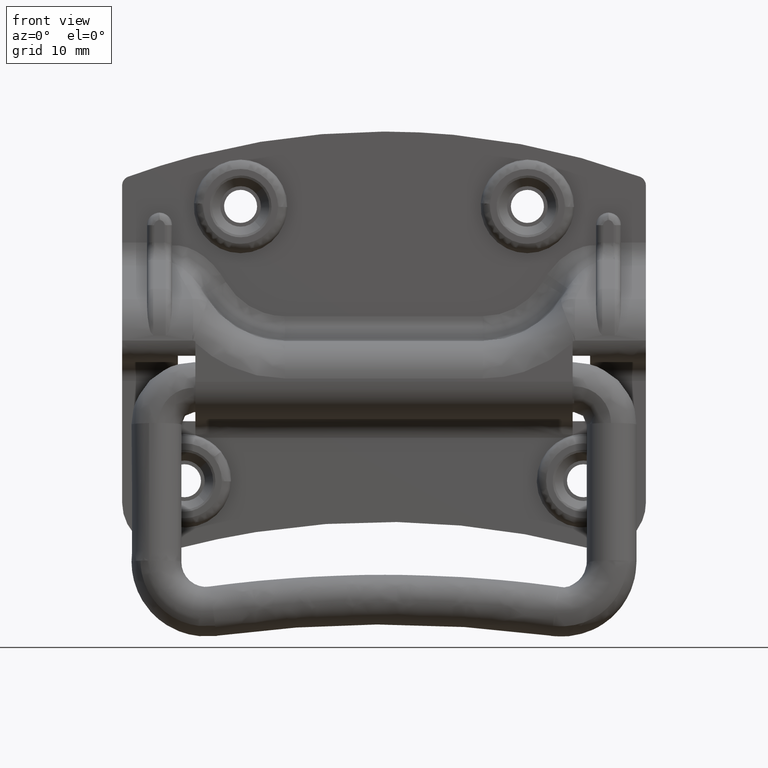
[diagram: clean part render]
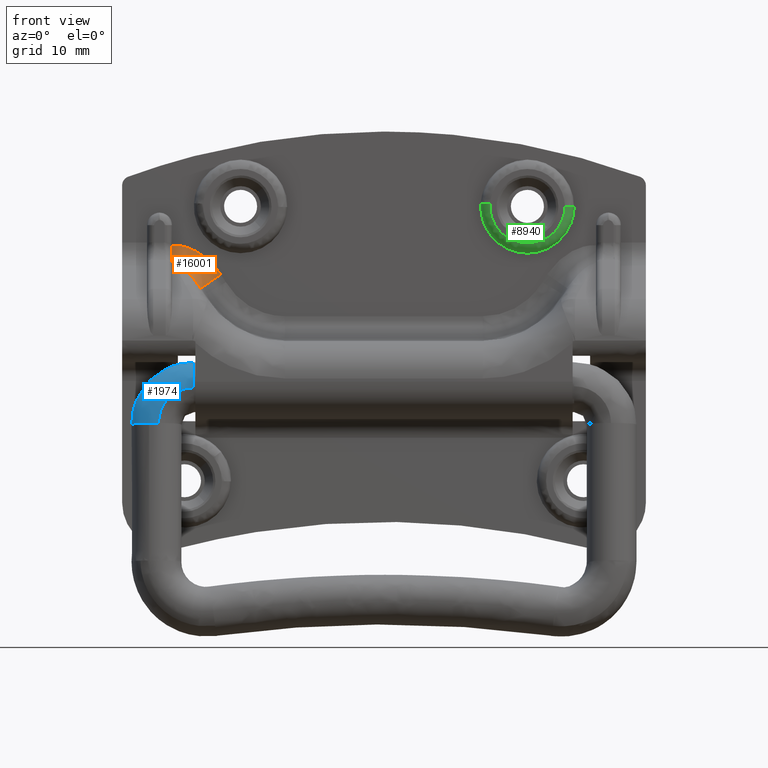
[diagram: same view with three faces highlighted in distinct colors, each labeled with its STEP entity id]
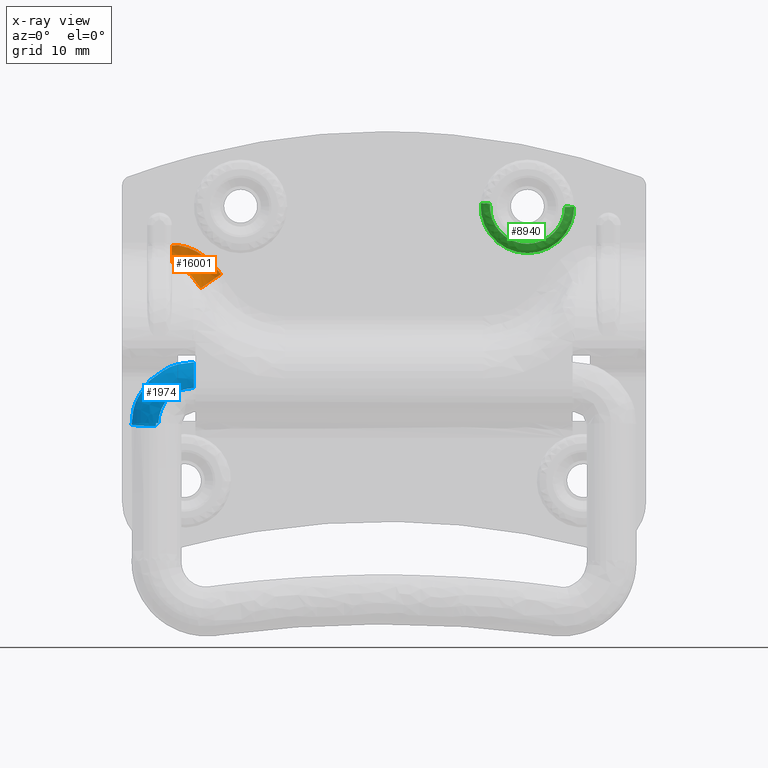
[diagram: x-ray of the same camera — body ghosted, the three highlighted faces saturated]
A machine part, front view with three faces highlighted in distinct colors.
The next image is the same camera in x-ray (body ghosted, the three faces saturated) — at least one of them is partly hidden behind the body in this view.
Their STEP definitions:

[orange] entity #16001 — the highlighted face is a freeform B-spline surface patch.
#15775=CARTESIAN_POINT('',(-26.149468137103501,4.935900000000090,18.113090514669800));
#15776=VERTEX_POINT('',#15775);
#15777=CARTESIAN_POINT('',(-29.409568860346251,1.460647611297752,15.855573467392000));
#15778=VERTEX_POINT('',#15777);
#15779=CARTESIAN_POINT('',(-26.149468137103501,4.935900000000090,18.113090514669800));
#15780=CARTESIAN_POINT('',(-26.568588633032931,4.936374894532090,17.822862774870689));
#15781=CARTESIAN_POINT('',(-27.258520476486911,4.773188127649849,17.345106708331791));
#15782=CARTESIAN_POINT('',(-28.040623944322942,4.245822206106547,16.803524695608321));
#15783=CARTESIAN_POINT('',(-28.599071117405529,3.650581379409214,16.416817621115332));
#15784=CARTESIAN_POINT('',(-29.131403673609110,2.776596310723893,16.048194096116969));
#15785=CARTESIAN_POINT('',(-29.355016877997240,1.966127437139701,15.893348996607340));
#15786=CARTESIAN_POINT('',(-29.409568860346251,1.460647611297752,15.855573467392000));
#15787=B_SPLINE_CURVE_WITH_KNOTS('',3,(#15779,#15780,#15781,#15782,#15783,#15784,#15785,#15786),.UNSPECIFIED.,.F.,.U.,(4,1,1,1,1,4),(0.000000226432683,1.529216599373791,2.518748498774976,3.238293776758118,4.227825676159383,5.757042049100749),.UNSPECIFIED.);
#15788=EDGE_CURVE('',#15776,#15778,#15787,.T.);
#15882=CARTESIAN_POINT('',(-34.410235586986460,4.935900000000102,22.733801792198545));
#15883=CARTESIAN_POINT('',(-33.726387109187556,4.935900000000077,22.832690968939257));
#15884=CARTESIAN_POINT('',(-33.001274293784540,4.935900000000100,22.801524732169892));
#15885=CARTESIAN_POINT('',(-31.527565269436298,4.935900000000101,22.481613556045001));
#15886=CARTESIAN_POINT('',(-30.779142388134730,4.935900000000107,22.192906839986659));
#15887=CARTESIAN_POINT('',(-29.319957373866892,4.935900000000093,21.381478462263914));
#15888=CARTESIAN_POINT('',(-28.609391789222855,4.935900000000104,20.858855246593208));
#15889=CARTESIAN_POINT('',(-27.284027282095938,4.935900000000101,19.622271182409914));
#15890=CARTESIAN_POINT('',(-26.669460900456720,4.935900000000104,18.908533275764974));
#15891=CARTESIAN_POINT('',(-26.116986752242507,4.935900000000100,18.112615664591296));
#15892=CARTESIAN_POINT('',(-26.106219856319939,4.935900000000099,18.097104419205174));
#15893=CARTESIAN_POINT('',(-26.095453056127965,4.935900000000102,18.081593311732568));
#15894=CARTESIAN_POINT('',(-34.409116190521672,4.935900000000100,22.726028388677140));
#15895=CARTESIAN_POINT('',(-33.726238528647450,4.935900000000089,22.824571686799118));
#15896=CARTESIAN_POINT('',(-33.002120172506437,4.935900000000101,22.793138854908772));
#15897=CARTESIAN_POINT('',(-31.530435779651707,4.935900000000104,22.472869214631039));
#15898=CARTESIAN_POINT('',(-30.783028965297582,4.935900000000107,22.184071094613131));
#15899=CARTESIAN_POINT('',(-29.325882313281642,4.935900000000098,21.372657251805233));
#15900=CARTESIAN_POINT('',(-28.616322838177432,4.935900000000102,20.850136520216704));
#15901=CARTESIAN_POINT('',(-27.292944487315840,4.935900000000103,19.613983650753454));
#15902=CARTESIAN_POINT('',(-26.679339668938560,4.935900000000100,18.900566222793017));
#15903=CARTESIAN_POINT('',(-26.127848402183226,4.935900000000100,18.105114087138883));
#15904=CARTESIAN_POINT('',(-26.117099412956708,4.935900000000102,18.089610112820917));
#15905=CARTESIAN_POINT('',(-26.106350471575588,4.935900000000101,18.074106207513520));
#15906=CARTESIAN_POINT('',(-34.165460109700923,4.935900000000101,21.034012113596926));
#15907=CARTESIAN_POINT('',(-33.693742064841921,4.935900000002790,21.048780873247040));
#15908=CARTESIAN_POINT('',(-33.188560870579245,4.935900000000101,20.944802007035715));
#15909=CARTESIAN_POINT('',(-32.176768034052657,4.935900000000101,20.503968400746068));
#15910=CARTESIAN_POINT('',(-31.670235688498707,4.935899999999380,20.167095135698244));
#15911=CARTESIAN_POINT('',(-30.724491068231121,4.935900000000826,19.290370613383690));
#15912=CARTESIAN_POINT('',(-30.285458452155375,4.935900000000101,18.750492325104176));
#15913=CARTESIAN_POINT('',(-29.542170860357654,4.935900000000101,17.523582643991670));
#15914=CARTESIAN_POINT('',(-29.238267333009791,4.935900000000102,16.836836083915628));
#15915=CARTESIAN_POINT('',(-29.027250436086202,4.935900000000101,16.102647699276751));
#15916=CARTESIAN_POINT('',(-29.023009989153557,4.935900000000101,16.087893966618285));
#15917=CARTESIAN_POINT('',(-29.018764529241658,4.935900000000101,16.073122792365421));
#15918=CARTESIAN_POINT('',(-33.996478444106515,3.704348476384656,19.860555955996645));
#15919=CARTESIAN_POINT('',(-33.675090459381785,3.639892164192167,19.844391847521287));
#15920=CARTESIAN_POINT('',(-33.317952318423458,3.536863904020250,19.737941675267827));
#15921=CARTESIAN_POINT('',(-32.561723906083650,3.262203975300446,19.353180193142890));
#15922=CARTESIAN_POINT('',(-32.162616753175726,3.090596932523266,19.074900438522768));
#15923=CARTESIAN_POINT('',(-31.354807783972664,2.692850551939682,18.369177516619494));
#15924=CARTESIAN_POINT('',(-30.946204691465599,2.466773247731942,17.941802838247305));
#15925=CARTESIAN_POINT('',(-30.152784814072685,1.978676906396786,16.972761025503956));
#15926=CARTESIAN_POINT('',(-29.768117599151026,1.716759171822953,16.431254880560147));
#15927=CARTESIAN_POINT('',(-29.403895201770215,1.442194637368716,15.843123269177168));
#15928=CARTESIAN_POINT('',(-29.396796226501568,1.436843162957062,15.831660130737754));
#15929=CARTESIAN_POINT('',(-29.389697282815078,1.431491712353206,15.820197043295895));
#15930=CARTESIAN_POINT('',(-33.995702517957007,3.698693466249019,19.855167706834767));
#15931=CARTESIAN_POINT('',(-33.675005224731542,3.633969629810518,19.838887995448300));
#15932=CARTESIAN_POINT('',(-33.318539060324390,3.530519797727854,19.732469014307313));
#15933=CARTESIAN_POINT('',(-32.563432694968114,3.254774570086181,19.348071934663526));
#15934=CARTESIAN_POINT('',(-32.164772600667987,3.082517434191914,19.070118359422118));
#15935=CARTESIAN_POINT('',(-31.357476613186190,2.683353237740470,18.365277085317956));
#15936=CARTESIAN_POINT('',(-30.948947000329539,2.456525579601390,17.938446517445069));
#15937=CARTESIAN_POINT('',(-30.155204375925528,1.966958890219760,16.970578391177174));
#15938=CARTESIAN_POINT('',(-29.770162029934696,1.704338095479777,16.429689942783529));
#15939=CARTESIAN_POINT('',(-29.405305444298392,1.429113420444462,15.842151551469204));
#15940=CARTESIAN_POINT('',(-29.398194933564962,1.423749701978131,15.830701304434603));
#15941=CARTESIAN_POINT('',(-29.391084486019487,1.418386031176781,15.819251159153255));
#15949=(BOUNDED_SURFACE()B_SPLINE_SURFACE(3,2,((#15882,#15894,#15906,#15918,#15930),(#15883,#15895,#15907,#15919,#15931),(#15884,#15896,#15908,#15920,#15932),(#15885,#15897,#15909,#15921,#15933),(#15886,#15898,#15910,#15922,#15934),(#15887,#15899,#15911,#15923,#15935),(#15888,#15900,#15912,#15924,#15936),(#15889,#15901,#15913,#15925,#15937),(#15890,#15902,#15914,#15926,#15938),(#15891,#15903,#15915,#15927,#15939),(#15892,#15904,#15916,#15928,#15940),(#15893,#15905,#15917,#15929,#15941)),.UNSPECIFIED.,.F.,.F.,.U.)B_SPLINE_SURFACE_WITH_KNOTS((4,2,2,2,2,4),(3,1,1,3),(0.0,2.844405272499931,5.688810544999862,8.533215817499793,11.377621089999730,11.434169491903839),(0.0,0.030318031439686,6.067746753124405,6.098048928499447),.UNSPECIFIED.)GEOMETRIC_REPRESENTATION_ITEM()RATIONAL_B_SPLINE_SURFACE(((1.000801484796465,1.000400742398233,0.920197534266042,1.000400532813472,1.000801065626943),(1.000845257472900,1.000422628736450,0.915839163992919,1.000422407705326,1.000844815410652),(1.000915472774058,1.000457736387029,0.908847946955077,1.000457496994911,1.000914993989823),(1.001106416825029,1.000553208412514,0.889835975484203,1.000552919089365,1.001105838178729),(1.001227177237807,1.000613588618903,0.877812068424176,1.000613267717435,1.001226535434870),(1.001515290277892,1.000757645138946,0.849125147461632,1.000757248897180,1.001514497794361),(1.001682653389610,1.000841326694805,0.832461089644220,1.000840886688320,1.001681773376640),(1.002058010123145,1.001029005061572,0.795087463846205,1.001028466900947,1.002056933801893),(1.002265980689953,1.001132990344977,0.774380191413078,1.001132397800959,1.002264795601919),(1.002494612397106,1.001247306198553,0.751615724693117,1.001246653868346,1.002493307736692),(1.002499069123795,1.001249534561897,0.751171976065012,1.001248881066276,1.002497762132552),(1.002503525850483,1.001251762925242,0.750728227436907,1.001251108264206,1.002502216528412)))REPRESENTATION_ITEM('')SURFACE());
#15950=CARTESIAN_POINT('',(-33.616371216479202,3.620712985992145,19.809048475093249));
#15951=VERTEX_POINT('',#15950);
#15952=CARTESIAN_POINT('',(-33.999893012754548,3.893463596952650,20.056016873212251));
#15953=VERTEX_POINT('',#15952);
#15954=CARTESIAN_POINT('',(-33.616371216479202,3.620712985992145,19.809048475093249));
#15955=CARTESIAN_POINT('',(-33.740199413352720,3.714654011597959,19.894109566358370));
#15956=CARTESIAN_POINT('',(-33.868140816532289,3.805642513775142,19.976497226465931));
#15957=CARTESIAN_POINT('',(-33.999893012754548,3.893463596952650,20.056016873212251));
#15958=B_SPLINE_CURVE_WITH_KNOTS('',3,(#15954,#15955,#15956,#15957),.UNSPECIFIED.,.F.,.U.,(4,4),(3.763315E-010,0.531582176992281),.UNSPECIFIED.);
#15959=EDGE_CURVE('',#15951,#15953,#15958,.T.);
#15960=ORIENTED_EDGE('',*,*,#15959,.F.);
#15961=CARTESIAN_POINT('',(-29.409568860346251,1.460647611297752,15.855573467392000));
#15962=CARTESIAN_POINT('',(-31.541248312919471,3.066498911174420,19.307222423115864));
#15963=CARTESIAN_POINT('',(-33.616371216479187,3.620712985992168,19.809048475093249));
#15971=(BOUNDED_CURVE()B_SPLINE_CURVE(2,(#15961,#15962,#15963),.UNSPECIFIED.,.F.,.U.)CURVE()GEOMETRIC_REPRESENTATION_ITEM()QUASI_UNIFORM_CURVE()RATIONAL_B_SPLINE_CURVE((1.0,0.867874527137185,1.0))REPRESENTATION_ITEM(''));
#15972=EDGE_CURVE('',#15778,#15951,#15971,.T.);
#15973=ORIENTED_EDGE('',*,*,#15972,.F.);
#15974=ORIENTED_EDGE('',*,*,#15788,.F.);
#15975=CARTESIAN_POINT('',(-33.999893012754612,4.935900000000000,22.761273209017901));
#15976=VERTEX_POINT('',#15975);
#15977=CARTESIAN_POINT('',(-33.999893012754619,4.935900000000100,22.761273209017890));
#15978=CARTESIAN_POINT('',(-29.575544874814057,4.935900000000100,23.060718823374433));
#15979=CARTESIAN_POINT('',(-26.149468137103561,4.935900000000100,18.113090514669771));
#15987=(BOUNDED_CURVE()B_SPLINE_CURVE(2,(#15977,#15978,#15979),.UNSPECIFIED.,.F.,.U.)CURVE()GEOMETRIC_REPRESENTATION_ITEM()QUASI_UNIFORM_CURVE()RATIONAL_B_SPLINE_CURVE((1.0,0.854611188290575,1.0))REPRESENTATION_ITEM(''));
#15988=EDGE_CURVE('',#15976,#15776,#15987,.T.);
#15989=ORIENTED_EDGE('',*,*,#15988,.F.);
#15990=CARTESIAN_POINT('',(-33.999893012754548,3.893463596952650,20.056016873212251));
#15991=CARTESIAN_POINT('',(-33.999893012754562,4.162912011402606,20.353790272214990));
#15992=CARTESIAN_POINT('',(-33.999893012754427,4.559815555797078,20.952552750551561));
#15993=CARTESIAN_POINT('',(-33.999893012754768,4.874573422484064,21.896423908930760));
#15994=CARTESIAN_POINT('',(-33.999893012754363,4.935766003509210,22.483272479315591));
#15995=CARTESIAN_POINT('',(-33.999893012754612,4.935900000000000,22.761273209017901));
#15996=B_SPLINE_CURVE_WITH_KNOTS('',3,(#15990,#15991,#15992,#15993,#15994,#15995),.UNSPECIFIED.,.F.,.U.,(4,1,1,4),(0.000000050628624,1.204717933598504,2.131389193544607,2.965412825676068),.UNSPECIFIED.);
#15997=EDGE_CURVE('',#15953,#15976,#15996,.T.);
#15998=ORIENTED_EDGE('',*,*,#15997,.F.);
#15999=EDGE_LOOP('',(#15960,#15973,#15974,#15989,#15998));
#16000=FACE_OUTER_BOUND('',#15999,.T.);
#16001=ADVANCED_FACE('',(#16000),#15949,.F.);

[blue] entity #1974 — the highlighted face is a freeform B-spline surface patch.
#75=CARTESIAN_POINT('',(-30.500000000111410,3.054222664130750,2.582968044307205));
#76=VERTEX_POINT('',#75);
#82=CARTESIAN_POINT('',(-30.500000000001702,3.085097E-013,4.000000000000048));
#83=VERTEX_POINT('',#82);
#84=CARTESIAN_POINT('',(-30.500000000111410,3.054222664130750,2.582968044307205));
#85=CARTESIAN_POINT('',(-30.499999999841389,2.843895965882568,2.831791841086822));
#86=CARTESIAN_POINT('',(-30.499999999460950,2.388734310278746,3.252753226706063));
#87=CARTESIAN_POINT('',(-30.499999999242849,1.375157629361917,3.827733165679847));
#88=CARTESIAN_POINT('',(-30.499999999582709,0.543133217550893,4.000684303556940));
#89=CARTESIAN_POINT('',(-30.500000000001702,3.085097E-013,4.000000000000048));
#90=B_SPLINE_CURVE_WITH_KNOTS('',3,(#84,#85,#86,#87,#88,#89),.UNSPECIFIED.,.F.,.U.,(4,1,1,4),(0.000000040384216,0.977431983495002,1.846259334138997,3.475313339162565),.UNSPECIFIED.);
#91=EDGE_CURVE('',#76,#83,#90,.T.);
#93=CARTESIAN_POINT('',(-30.499999999999108,-2.753418226395301,2.901497556530549));
#94=VERTEX_POINT('',#93);
#95=CARTESIAN_POINT('',(-30.500000000001702,3.085097E-013,4.000000000000048));
#96=CARTESIAN_POINT('',(-30.499999999995339,-0.537869276490124,4.000636405925197));
#97=CARTESIAN_POINT('',(-30.499999999989200,-1.549602770161762,3.792516461976492));
#98=CARTESIAN_POINT('',(-30.499999999994330,-2.409415052087087,3.228408907866761));
#99=CARTESIAN_POINT('',(-30.499999999999108,-2.753418226395301,2.901497556530549));
#100=B_SPLINE_CURVE_WITH_KNOTS('',3,(#95,#96,#97,#98,#99),.UNSPECIFIED.,.F.,.U.,(4,1,4),(0.000000059124352,1.613363088832187,3.036944005040169),.UNSPECIFIED.);
#101=EDGE_CURVE('',#83,#94,#100,.T.);
#190=CARTESIAN_POINT('',(-30.500000000064851,-3.999314353768646,-0.074058758674287));
#191=VERTEX_POINT('',#190);
#192=CARTESIAN_POINT('',(-30.499999999999108,-2.753418226395301,2.901497556530549));
#193=CARTESIAN_POINT('',(-30.500000000004349,-3.130158262163405,2.544681717367211));
#194=CARTESIAN_POINT('',(-30.500000000017149,-3.618873456919368,1.854369051929553));
#195=CARTESIAN_POINT('',(-30.500000000042100,-3.954079034894259,0.791586470176317));
#196=CARTESIAN_POINT('',(-30.500000000057248,-4.004475356544727,0.202588744095416));
#197=CARTESIAN_POINT('',(-30.500000000064851,-3.999314353768646,-0.074058758674287));
#198=B_SPLINE_CURVE_WITH_KNOTS('',3,(#192,#193,#194,#195,#196,#197),.UNSPECIFIED.,.F.,.U.,(4,1,1,4),(0.000000057287844,1.556477463123733,2.490351446087861,3.320468575687861),.UNSPECIFIED.);
#199=EDGE_CURVE('',#94,#191,#198,.T.);
#215=CARTESIAN_POINT('',(-30.500000004136989,3.997003789707458,-0.154792458045871));
#216=VERTEX_POINT('',#215);
#229=CARTESIAN_POINT('',(-30.500000004136989,3.997003789707458,-0.154792458045871));
#230=CARTESIAN_POINT('',(-30.500000003211131,4.017846050625035,0.369534063227824));
#231=CARTESIAN_POINT('',(-30.500000001608768,3.858337887955125,1.363554162308241));
#232=CARTESIAN_POINT('',(-30.500000000494360,3.353442224484764,2.229666609896856));
#233=CARTESIAN_POINT('',(-30.500000000111410,3.054222664130750,2.582968044307205));
#234=B_SPLINE_CURVE_WITH_KNOTS('',3,(#229,#230,#231,#232,#233),.UNSPECIFIED.,.F.,.U.,(4,1,4),(0.000000052317636,1.574015354701106,2.962875920325647),.UNSPECIFIED.);
#235=EDGE_CURVE('',#216,#76,#234,.T.);
#1498=CARTESIAN_POINT('',(-37.665331060222371,-4.201473878359785,-5.743655194564997));
#1499=VERTEX_POINT('',#1498);
#1500=CARTESIAN_POINT('',(-36.170944023897562,-4.361104466673167,-5.733450426077690));
#1501=VERTEX_POINT('',#1500);
#1502=CARTESIAN_POINT('',(-37.665331060222371,-4.201473878359785,-5.743655194564997));
#1503=CARTESIAN_POINT('',(-37.183257959893247,-4.348225910770268,-5.734273721555652));
#1504=CARTESIAN_POINT('',(-36.673226830400807,-4.402810164144968,-5.730784292154104));
#1505=CARTESIAN_POINT('',(-36.170944023897562,-4.361104466673167,-5.733450426077690));
#1506=B_SPLINE_CURVE_WITH_KNOTS('',3,(#1502,#1503,#1504,#1505),.UNSPECIFIED.,.F.,.U.,(4,4),(0.000000017734959,1.511942503902248),.UNSPECIFIED.);
#1507=EDGE_CURVE('',#1499,#1501,#1506,.T.);
#1542=CARTESIAN_POINT('',(-39.286542011831678,2.481069219012682,-6.170852704387944));
#1543=VERTEX_POINT('',#1542);
#1549=CARTESIAN_POINT('',(-36.600517164842827,3.607808131056649,-6.242882174906182));
#1550=VERTEX_POINT('',#1549);
#1551=CARTESIAN_POINT('',(-36.600517164842827,3.607808131056649,-6.242882174906182));
#1552=CARTESIAN_POINT('',(-37.066397328448609,3.596436187324883,-6.242155197029355));
#1553=CARTESIAN_POINT('',(-38.055486891891611,3.395838706450712,-6.229331525794561));
#1554=CARTESIAN_POINT('',(-38.908024342847163,2.848721839789822,-6.194355775295453));
#1555=CARTESIAN_POINT('',(-39.286542011831678,2.481069219012682,-6.170852704387944));
#1556=B_SPLINE_CURVE_WITH_KNOTS('',3,(#1551,#1552,#1553,#1554,#1555),.UNSPECIFIED.,.F.,.U.,(4,1,4),(0.000000054043758,1.397979597851321,2.982329225036112),.UNSPECIFIED.);
#1557=EDGE_CURVE('',#1550,#1543,#1556,.T.);
#1849=CARTESIAN_POINT('',(-40.491848355661247,-0.637451530385693,-5.971493825349895));
#1850=VERTEX_POINT('',#1849);
#1851=CARTESIAN_POINT('',(-40.491848355661247,-0.637451530385693,-5.971493825349895));
#1852=CARTESIAN_POINT('',(-40.467789359957912,-1.014458094133928,-5.947392781390362));
#1853=CARTESIAN_POINT('',(-40.295885611278557,-1.836256222553362,-5.894857375582069));
#1854=CARTESIAN_POINT('',(-39.674739611017209,-2.924098344295965,-5.825314472836565));
#1855=CARTESIAN_POINT('',(-38.743215889689267,-3.757206172638573,-5.772056067480712));
#1856=CARTESIAN_POINT('',(-38.027490474633780,-4.091524222925897,-5.750683988580134));
#1857=CARTESIAN_POINT('',(-37.665331060222371,-4.201473878359785,-5.743655194564997));
#1858=B_SPLINE_CURVE_WITH_KNOTS('',3,(#1851,#1852,#1853,#1854,#1855,#1856,#1857),.UNSPECIFIED.,.F.,.U.,(4,1,1,1,4),(0.000000185293670,1.135641242074294,2.498371073426027,3.709772198294401,4.845413255074505),.UNSPECIFIED.);
#1859=EDGE_CURVE('',#1850,#1499,#1858,.T.);
#1861=CARTESIAN_POINT('',(-39.286542011831678,2.481069219012682,-6.170852704387944));
#1862=CARTESIAN_POINT('',(-39.674479804867993,2.106067642856791,-6.146879833834167));
#1863=CARTESIAN_POINT('',(-40.148958167787562,1.408443863884040,-6.102282569276190));
#1864=CARTESIAN_POINT('',(-40.476918328658840,0.299382800541020,-6.031383194867286));
#1865=CARTESIAN_POINT('',(-40.512602815911123,-0.314788134398018,-5.992120852671405));
#1866=CARTESIAN_POINT('',(-40.491848355661247,-0.637451530385693,-5.971493825349895));
#1867=B_SPLINE_CURVE_WITH_KNOTS('',3,(#1861,#1862,#1863,#1864,#1865,#1866),.UNSPECIFIED.,.F.,.U.,(4,1,1,4),(0.000000039228292,1.619935062993134,2.483898997033052,3.455859564064375),.UNSPECIFIED.);
#1868=EDGE_CURVE('',#1543,#1850,#1867,.T.);
#1904=CARTESIAN_POINT('',(-36.097391782794780,-4.381129598015309,-6.124194827380368));
#1905=CARTESIAN_POINT('',(-36.547246198288647,-3.970517852331006,0.298901347831416));
#1906=CARTESIAN_POINT('',(-30.110870686848919,-3.999063480861248,-0.147630733529422));
#1907=CARTESIAN_POINT('',(-36.127352624595467,-4.383737233369843,-6.126126495680587));
#1908=CARTESIAN_POINT('',(-36.579614950326622,-3.970927629463116,0.331350222441845));
#1909=CARTESIAN_POINT('',(-30.108787816425746,-3.999626052561558,-0.117571985886646));
#1910=CARTESIAN_POINT('',(-36.270955398352307,-4.396235669573639,-6.135385011437085));
#1911=CARTESIAN_POINT('',(-36.734758874740493,-3.972891697535193,0.486878175572965));
#1912=CARTESIAN_POINT('',(-30.098804586577469,-4.002322467339861,0.026500052071280));
#1913=CARTESIAN_POINT('',(-36.385118898906512,-4.399615718337149,-6.143164603354470));
#1914=CARTESIAN_POINT('',(-36.858097533440741,-3.967896975320535,0.610103017901631));
#1915=CARTESIAN_POINT('',(-30.090867967830473,-3.997909957163414,0.140617498045343));
#1916=CARTESIAN_POINT('',(-40.374123948251771,-4.517718540335681,-6.414992563163381));
#1917=CARTESIAN_POINT('',(-41.167693244385063,-3.793375591186165,4.915721852884913));
#1918=CARTESIAN_POINT('',(-29.813553308567361,-3.843731736552790,4.128013346973201));
#1919=CARTESIAN_POINT('',(-40.474399694020939,-0.527574799826060,-6.677095033358390));
#1920=CARTESIAN_POINT('',(-41.276028009203017,0.204124146655397,4.768687397241972));
#1921=CARTESIAN_POINT('',(-29.806582163149812,0.153256614146260,3.972979390990490));
#1922=CARTESIAN_POINT('',(-40.574675439790063,3.462568940683560,-6.939197503553404));
#1923=CARTESIAN_POINT('',(-41.384362774020971,4.201623884496958,4.621652941599036));
#1924=CARTESIAN_POINT('',(-29.799611017732271,4.150244964845309,3.817945435007781));
#1925=CARTESIAN_POINT('',(-36.556595283724533,3.581532591914214,-6.665388240927566));
#1926=CARTESIAN_POINT('',(-37.043355231387558,4.025830446854027,0.284651261626763));
#1927=CARTESIAN_POINT('',(-30.078946971331536,3.994942968214662,-0.198513791481494));
#1928=CARTESIAN_POINT('',(-36.527695211297562,3.582388238890684,-6.663418865700166));
#1929=CARTESIAN_POINT('',(-37.012132501248956,4.024566051201690,0.253457343686148));
#1930=CARTESIAN_POINT('',(-30.080956097326272,3.993825957409414,-0.227402205360027));
#1938=(BOUNDED_SURFACE()B_SPLINE_SURFACE(2,2,((#1904,#1907,#1910,#1913,#1916,#1919,#1922,#1925,#1928),(#1905,#1908,#1911,#1914,#1917,#1920,#1923,#1926,#1929),(#1906,#1909,#1912,#1915,#1918,#1921,#1924,#1927,#1930)),.UNSPECIFIED.,.F.,.F.,.U.)B_SPLINE_SURFACE_WITH_KNOTS((3,3),(3,1,2,2,1,3),(0.0,18.221395796203058),(0.0,0.068436501962348,0.333532929065234,6.960949927034756,13.588366925004280,13.656888793819180),.UNSPECIFIED.)GEOMETRIC_REPRESENTATION_ITEM()RATIONAL_B_SPLINE_SURFACE(((0.890996778188700,0.893547581830447,0.905979208019788,0.916719231637393,0.648218385134922,0.916719231637393,0.648218385134922,0.919495302584244,0.922271373531096),(0.586320247869769,0.587998803685130,0.596179432759431,0.603246903106969,0.426559975916722,0.603246903106969,0.426559975916722,0.605073696026435,0.606900488945901),(0.895959614933646,0.898524626507848,0.911025496641457,0.921825342006071,0.651828950402101,0.921825342006071,0.651828950402101,0.924616875620397,0.927408409234722)))REPRESENTATION_ITEM('')SURFACE());
#1939=ORIENTED_EDGE('',*,*,#199,.F.);
#1940=ORIENTED_EDGE('',*,*,#101,.F.);
#1941=ORIENTED_EDGE('',*,*,#91,.F.);
#1942=ORIENTED_EDGE('',*,*,#235,.F.);
#1943=CARTESIAN_POINT('',(-36.600517164842827,3.607808131056649,-6.242882174906182));
#1944=CARTESIAN_POINT('',(-36.600566640695213,3.634872224829295,-5.819525368073120));
#1945=CARTESIAN_POINT('',(-36.501267841699871,3.695370127324680,-4.873171906877605));
#1946=CARTESIAN_POINT('',(-35.984927789418748,3.789291687827308,-3.403980576956761));
#1947=CARTESIAN_POINT('',(-35.113343862710778,3.868237748793076,-2.169047217563576));
#1948=CARTESIAN_POINT('',(-34.037273434153043,3.928176144786231,-1.231445977446039));
#1949=CARTESIAN_POINT('',(-32.966880533339307,3.966866657348686,-0.626220029719567));
#1950=CARTESIAN_POINT('',(-31.747707674857871,3.991500626839379,-0.240877047476592));
#1951=CARTESIAN_POINT('',(-30.924226841071349,3.997008164167931,-0.154724028729790));
#1952=CARTESIAN_POINT('',(-30.500000004136989,3.997003789707458,-0.154792458045871));
#1953=B_SPLINE_CURVE_WITH_KNOTS('',3,(#1943,#1944,#1945,#1946,#1947,#1948,#1949,#1950,#1951,#1952),.UNSPECIFIED.,.F.,.U.,(4,1,1,1,1,1,1,4),(0.000000228443815,1.272673770415366,2.844884356619590,4.641663743570636,5.764582830799752,7.112181905299922,8.310057585648682,9.582730062592963),.UNSPECIFIED.);
#1954=EDGE_CURVE('',#1550,#216,#1953,.T.);
#1955=ORIENTED_EDGE('',*,*,#1954,.F.);
#1956=ORIENTED_EDGE('',*,*,#1557,.T.);
#1957=ORIENTED_EDGE('',*,*,#1868,.T.);
#1958=ORIENTED_EDGE('',*,*,#1859,.T.);
#1959=ORIENTED_EDGE('',*,*,#1507,.T.);
#1960=CARTESIAN_POINT('',(-36.170944023897562,-4.361104466673167,-5.733450426077690));
#1961=CARTESIAN_POINT('',(-36.171559611667220,-4.316700756178755,-5.038854359980982));
#1962=CARTESIAN_POINT('',(-35.945986474197483,-4.239771472265303,-3.835468936132114));
#1963=CARTESIAN_POINT('',(-35.133188720416399,-4.145569283553145,-2.361887810403401));
#1964=CARTESIAN_POINT('',(-34.182242863434787,-4.081857927393763,-1.365267103241810));
#1965=CARTESIAN_POINT('',(-32.994467099822359,-4.031882358285632,-0.583511855391513));
#1966=CARTESIAN_POINT('',(-31.752731132039809,-4.004630559096302,-0.157218820424327));
#1967=CARTESIAN_POINT('',(-30.847952401503239,-3.999314366897786,-0.074058964047584));
#1968=CARTESIAN_POINT('',(-30.500000000064851,-3.999314353768646,-0.074058758674287));
#1969=B_SPLINE_CURVE_WITH_KNOTS('',3,(#1960,#1961,#1962,#1963,#1964,#1965,#1966,#1967,#1968),.UNSPECIFIED.,.F.,.U.,(4,1,1,1,1,1,4),(0.000000226165135,2.087799928873212,3.618903033088560,5.010676030004875,6.193797350853973,7.864061264361381,8.907953936100931),.UNSPECIFIED.);
#1970=EDGE_CURVE('',#1501,#191,#1969,.T.);
#1971=ORIENTED_EDGE('',*,*,#1970,.T.);
#1972=EDGE_LOOP('',(#1939,#1940,#1941,#1942,#1955,#1956,#1957,#1958,#1959,#1971));
#1973=FACE_OUTER_BOUND('',#1972,.T.);
#1974=ADVANCED_FACE('',(#1973),#1938,.T.);

[green] entity #8940 — the highlighted face is a freeform B-spline surface patch.
#8821=CARTESIAN_POINT('',(15.521879544120591,5.040205864042701,29.522745775056169));
#8822=CARTESIAN_POINT('',(15.506918799062083,5.040205864042699,29.308725386952275));
#8823=CARTESIAN_POINT('',(15.504222847514310,5.040205864042698,29.094199672264974));
#8824=CARTESIAN_POINT('',(15.410023175249332,5.040205864042700,21.598422519779305));
#8825=CARTESIAN_POINT('',(22.905800327735015,5.040205864042698,21.504222847514310));
#8826=CARTESIAN_POINT('',(30.401577480220695,5.040205864042700,21.410023175249339));
#8827=CARTESIAN_POINT('',(30.495777152485687,5.040205864042698,28.905800327735015));
#8828=CARTESIAN_POINT('',(15.402234555370374,3.319593647198974,29.531109362236233));
#8829=CARTESIAN_POINT('',(15.387034448270997,3.319593647198972,29.313664789261537));
#8830=CARTESIAN_POINT('',(15.384295363278868,3.319593647198973,29.095706804811847));
#8831=CARTESIAN_POINT('',(15.288588558467023,3.319593647198972,21.480002168090721));
#8832=CARTESIAN_POINT('',(22.904293195188156,3.319593647198973,21.384295363278873));
#8833=CARTESIAN_POINT('',(30.519997831909286,3.319593647198972,21.288588558467023));
#8834=CARTESIAN_POINT('',(30.615704636721130,3.319593647198973,28.904293195188149));
#8835=CARTESIAN_POINT('',(17.118658220518654,3.439530989256036,29.411125574270205));
#8836=CARTESIAN_POINT('',(17.106891994568713,3.439530989256035,29.242804261763592));
#8837=CARTESIAN_POINT('',(17.104771700764029,3.439530989256036,29.074085523411160));
#8838=CARTESIAN_POINT('',(17.030686177352862,3.439530989256036,23.178857224175172));
#8839=CARTESIAN_POINT('',(22.925914476588844,3.439530989256036,23.104771700764026));
#8840=CARTESIAN_POINT('',(28.821142775824821,3.439530989256036,23.030686177352866));
#8841=CARTESIAN_POINT('',(28.895228299235974,3.439530989256036,28.925914476588844));
#8849=(BOUNDED_SURFACE()B_SPLINE_SURFACE(2,2,((#8821,#8828,#8835),(#8822,#8829,#8836),(#8823,#8830,#8837),(#8824,#8831,#8838),(#8825,#8832,#8839),(#8826,#8833,#8840),(#8827,#8834,#8841)),.UNSPECIFIED.,.F.,.F.,.U.)B_SPLINE_SURFACE_WITH_KNOTS((3,2,2,3),(3,3),(0.0,0.496815161807507,12.917206052002969,25.337596942198431),(0.0,2.733561761093873),.UNSPECIFIED.)GEOMETRIC_REPRESENTATION_ITEM()RATIONAL_B_SPLINE_SURFACE(((0.889999354222063,0.584039666282865,0.889999445682314),(0.899812925844456,0.590479575557176,0.899813018313193),(0.910479850636381,0.597479476361807,0.910479944201298),(0.643806476518700,0.422481789355221,0.643806542679088),(0.910479850636381,0.597479476361807,0.910479944201298),(0.643806476518700,0.422481789355221,0.643806542679088),(0.910479850636381,0.597479476361807,0.910479944201298)))REPRESENTATION_ITEM('')SURFACE());
#8850=CARTESIAN_POINT('',(17.014605943432219,3.435900000000000,29.418399512056361));
#8851=VERTEX_POINT('',#8850);
#8852=CARTESIAN_POINT('',(23.0,3.435900000000000,23.000000000000121));
#8853=VERTEX_POINT('',#8852);
#8854=CARTESIAN_POINT('',(17.014605943432219,3.435900000000000,29.418399512056361));
#8855=CARTESIAN_POINT('',(16.985958902440750,3.435900000000004,29.009258316656570));
#8856=CARTESIAN_POINT('',(17.013836686555290,3.435900000000000,28.159321456582941));
#8857=CARTESIAN_POINT('',(17.294467841577209,3.435900000000003,27.033390919731659));
#8858=CARTESIAN_POINT('',(17.862411190291770,3.435900000000002,25.794660985037179));
#8859=CARTESIAN_POINT('',(18.722061683328189,3.435899999999995,24.688972715939350));
#8860=CARTESIAN_POINT('',(20.066668826287099,3.435900000000013,23.685985757192071));
#8861=CARTESIAN_POINT('',(21.487568145334610,3.435899999999973,23.121672898899920));
#8862=CARTESIAN_POINT('',(22.538601488302689,3.435900000000040,22.999945187863720));
#8863=CARTESIAN_POINT('',(23.0,3.435900000000000,23.000000000000121));
#8864=B_SPLINE_CURVE_WITH_KNOTS('',3,(#8854,#8855,#8856,#8857,#8858,#8859,#8860,#8861,#8862,#8863),.UNSPECIFIED.,.F.,.U.,(4,1,1,1,1,1,1,4),(0.000000244837837,1.230435653814512,2.537801259810469,3.460655926673472,5.306296140566404,6.690541396472941,8.459364695381886,9.843584686997607),.UNSPECIFIED.);
#8865=EDGE_CURVE('',#8851,#8853,#8864,.T.);
#8866=ORIENTED_EDGE('',*,*,#8865,.F.);
#8867=CARTESIAN_POINT('',(15.518257446197710,4.935899998832092,29.522999386828580));
#8868=VERTEX_POINT('',#8867);
#8869=CARTESIAN_POINT('',(15.518257446197710,4.935899998832092,29.522999386828580));
#8870=CARTESIAN_POINT('',(15.518120285097730,4.751810845851281,29.523008974856751));
#8871=CARTESIAN_POINT('',(15.586660794638780,4.383712744020918,29.518217758952218));
#8872=CARTESIAN_POINT('',(15.854432095033200,3.948071600812231,29.499499629757860));
#8873=CARTESIAN_POINT('',(16.185392253482480,3.669086449740664,29.476364383395449));
#8874=CARTESIAN_POINT('',(16.561730985677169,3.484966875811590,29.450057019616199));
#8875=CARTESIAN_POINT('',(16.843199503173910,3.435768316904534,29.430381408130110));
#8876=CARTESIAN_POINT('',(17.014605943432219,3.435900000000000,29.418399512056361));
#8877=B_SPLINE_CURVE_WITH_KNOTS('',3,(#8869,#8870,#8871,#8872,#8873,#8874,#8875,#8876),.UNSPECIFIED.,.F.,.U.,(4,1,1,1,1,4),(0.000000420027439,0.552244427442477,1.104524910056957,1.509463941311022,1.840827747661699,2.356253611569123),.UNSPECIFIED.);
#8878=EDGE_CURVE('',#8868,#8851,#8877,.T.);
#8879=ORIENTED_EDGE('',*,*,#8878,.F.);
#8880=CARTESIAN_POINT('',(23.0,4.935900000000100,21.500000000000000));
#8881=VERTEX_POINT('',#8880);
#8882=CARTESIAN_POINT('',(15.518257446197710,4.935899998832092,29.522999386828580));
#8883=CARTESIAN_POINT('',(15.475650832097539,4.935899998990069,28.915668223912370));
#8884=CARTESIAN_POINT('',(15.526213986379149,4.935899999228099,27.948589374653100));
#8885=CARTESIAN_POINT('',(15.891271243791079,4.935899999555751,26.483616351632271));
#8886=CARTESIAN_POINT('',(16.474292591901079,4.935899999814988,25.190706641773080));
#8887=CARTESIAN_POINT('',(17.429852555836820,4.935900000032852,23.894217261114889));
#8888=CARTESIAN_POINT('',(18.588809322900641,4.935900000158788,22.869226105785071));
#8889=CARTESIAN_POINT('',(19.958369849268369,4.935900000199607,22.086668538868590));
#8890=CARTESIAN_POINT('',(21.429934297442859,4.935900000152107,21.608804392282408));
#8891=CARTESIAN_POINT('',(22.487326381676510,4.935900000058587,21.499940769541290));
#8892=CARTESIAN_POINT('',(23.0,4.935900000000100,21.500000000000000));
#8893=B_SPLINE_CURVE_WITH_KNOTS('',3,(#8882,#8883,#8884,#8885,#8886,#8887,#8888,#8889,#8890,#8891,#8892),.UNSPECIFIED.,.F.,.U.,(4,1,1,1,1,1,1,1,4),(0.000000234598984,1.826436537683680,2.883862002407762,4.518060882511422,6.056175677983816,7.690264628557556,9.132230325867154,10.766456764768920,12.304480852378710),.UNSPECIFIED.);
#8894=EDGE_CURVE('',#8868,#8881,#8893,.T.);
#8895=ORIENTED_EDGE('',*,*,#8894,.T.);
#8896=CARTESIAN_POINT('',(30.499407831528160,4.935899998837362,28.905754700842330));
#8897=VERTEX_POINT('',#8896);
#8898=CARTESIAN_POINT('',(23.0,4.935900000000100,21.500000000000000));
#8899=CARTESIAN_POINT('',(23.456512884854980,4.935900000000103,21.499963212648701));
#8900=CARTESIAN_POINT('',(24.369522080515239,4.935899999986974,21.583612097934999));
#8901=CARTESIAN_POINT('',(25.781803061467709,4.935899999924683,21.980348625538809));
#8902=CARTESIAN_POINT('',(27.225092629559160,4.935899999808234,22.722061528269780));
#8903=CARTESIAN_POINT('',(28.321543661933230,4.935899999661420,23.657113910738691));
#8904=CARTESIAN_POINT('',(29.231426969026099,4.935899999487714,24.763630069953511));
#8905=CARTESIAN_POINT('',(29.890044020513908,4.935899999308720,25.903617316015762));
#8906=CARTESIAN_POINT('',(30.375959379164652,4.935899999076042,27.385512124915149));
#8907=CARTESIAN_POINT('',(30.492982081814020,4.935899998918606,28.388421578383500));
#8908=CARTESIAN_POINT('',(30.499407831528160,4.935899998837362,28.905754700842330));
#8909=B_SPLINE_CURVE_WITH_KNOTS('',3,(#8898,#8899,#8900,#8901,#8902,#8903,#8904,#8905,#8906,#8907,#8908),.UNSPECIFIED.,.F.,.U.,(4,1,1,1,1,1,1,1,4),(0.000000208638280,1.369542641028691,2.739091837237147,4.382561906403691,6.208548418315140,7.030335441560201,8.673793310303580,10.134678695449839,11.686796832055890),.UNSPECIFIED.);
#8910=EDGE_CURVE('',#8881,#8897,#8909,.T.);
#8911=ORIENTED_EDGE('',*,*,#8910,.T.);
#8912=CARTESIAN_POINT('',(28.999526273248890,3.435900000000001,28.924603759641041));
#8913=VERTEX_POINT('',#8912);
#8914=CARTESIAN_POINT('',(30.499407831528160,4.935899998837362,28.905754700842330));
#8915=CARTESIAN_POINT('',(30.499538382225339,4.751816915633738,28.905753060211630));
#8916=CARTESIAN_POINT('',(30.428578147449230,4.371406689692193,28.906644819724381));
#8917=CARTESIAN_POINT('',(30.167646639071140,3.959232665646279,28.909923954214541));
#8918=CARTESIAN_POINT('',(29.859366552316992,3.693567561847673,28.913798119776612));
#8919=CARTESIAN_POINT('',(29.502490951117039,3.497051168807197,28.918282986697090));
#8920=CARTESIAN_POINT('',(29.195902987325670,3.435671175183793,28.922135887292882));
#8921=CARTESIAN_POINT('',(28.999526273248890,3.435900000000001,28.924603759641041));
#8922=B_SPLINE_CURVE_WITH_KNOTS('',3,(#8914,#8915,#8916,#8917,#8918,#8919,#8920,#8921),.UNSPECIFIED.,.F.,.U.,(4,1,1,1,1,4),(0.000000420017910,0.552244427880305,1.141372287197320,1.435838834906064,1.767190305121605,2.356253613473506),.UNSPECIFIED.);
#8923=EDGE_CURVE('',#8897,#8913,#8922,.T.);
#8924=ORIENTED_EDGE('',*,*,#8923,.T.);
#8925=CARTESIAN_POINT('',(23.0,3.435900000000000,23.000000000000121));
#8926=CARTESIAN_POINT('',(23.633085821093129,3.435900000000005,22.999628689912232));
#8927=CARTESIAN_POINT('',(24.558048928039710,3.435900000000001,23.147837310555069));
#8928=CARTESIAN_POINT('',(25.754942991979082,3.435899999999992,23.639333141787311));
#8929=CARTESIAN_POINT('',(26.815555278202471,3.435900000000016,24.295029245438730));
#8930=CARTESIAN_POINT('',(27.801517408838379,3.435899999999993,25.292620029421052));
#8931=CARTESIAN_POINT('',(28.512010585401718,3.435900000000001,26.522914616973221));
#8932=CARTESIAN_POINT('',(28.900758502620469,3.435899999999997,27.708415704499561));
#8933=CARTESIAN_POINT('',(28.994387146668640,3.435900000000006,28.510737007692171));
#8934=CARTESIAN_POINT('',(28.999526273248890,3.435900000000001,28.924603759641041));
#8935=B_SPLINE_CURVE_WITH_KNOTS('',3,(#8925,#8926,#8927,#8928,#8929,#8930,#8931,#8932,#8933,#8934),.UNSPECIFIED.,.F.,.U.,(4,1,1,1,1,1,1,4),(0.000000215996861,1.899100545244567,2.775627534373971,3.871274876314140,5.624244040650655,6.939035082989376,8.107747754404032,9.349437468371443),.UNSPECIFIED.);
#8936=EDGE_CURVE('',#8853,#8913,#8935,.T.);
#8937=ORIENTED_EDGE('',*,*,#8936,.F.);
#8938=EDGE_LOOP('',(#8866,#8879,#8895,#8911,#8924,#8937));
#8939=FACE_OUTER_BOUND('',#8938,.T.);
#8940=ADVANCED_FACE('',(#8939),#8849,.T.);